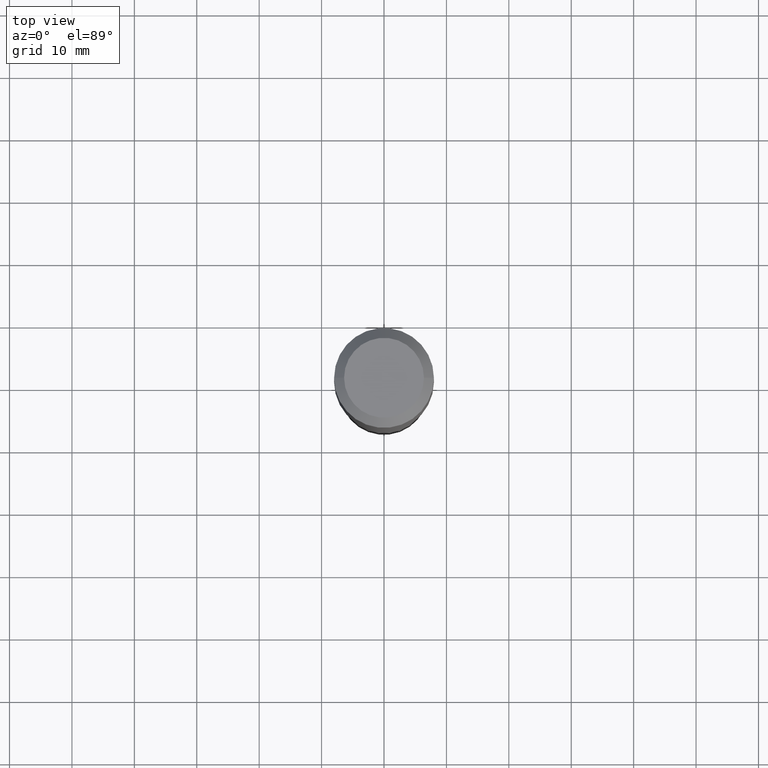
[diagram: clean part render]
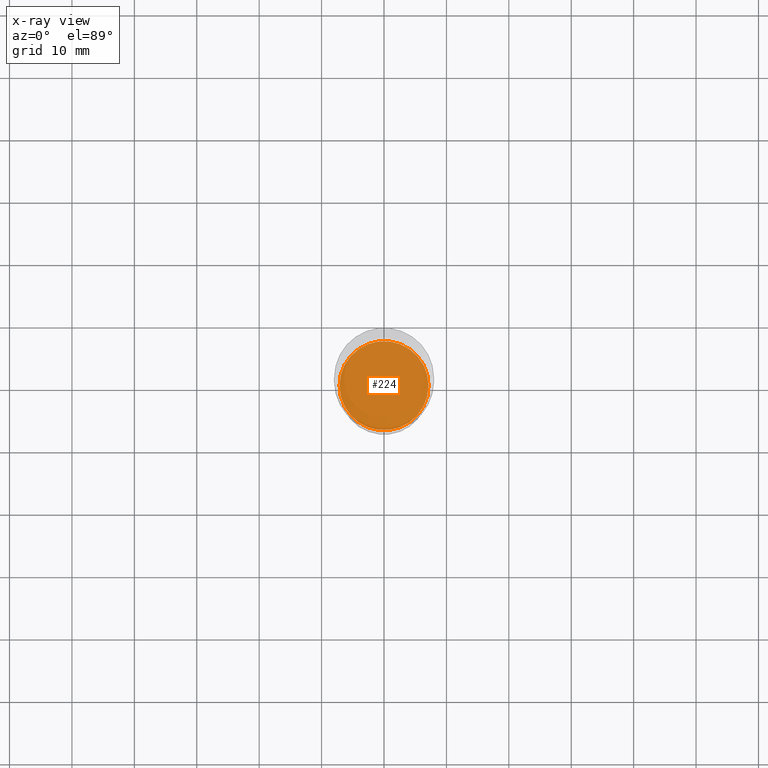
[diagram: x-ray — body ghosted, one internal face saturated and labeled with its STEP entity id]
A machine part, top view, then the same camera in x-ray: the body is ghosted and one INTERNAL B-rep face — a face not visible from any outside direction — is saturated and labeled: STEP entity #224.
In plain terms, the highlighted planar face has unit normal (-0, 0, 1).
Its self-contained STEP definition (entity closure, byte-faithful):
#9 = EDGE_CURVE ( 'NONE', #353, #430, #295, .T. ) ;
#15 = DIRECTION ( 'NONE',  ( 1.000000000000000000, -6.982962677686264344E-15, 0.000000000000000000 ) ) ;
#41 = AXIS2_PLACEMENT_3D ( 'NONE', #294, #204, #15 ) ;
#71 = CARTESIAN_POINT ( 'NONE',  ( 7.078654006383494547E-29, -1.010644188341536605E-14, -2.894599999999999174 ) ) ;
#78 = DIRECTION ( 'NONE',  ( -2.445468806185136597E-29, 3.491481338843145583E-15, 1.000000000000000000 ) ) ;
#84 = CIRCLE ( 'NONE', #41, 0.2807499999999999996 ) ;
#101 = CARTESIAN_POINT ( 'NONE',  ( 7.078654006383494547E-29, -1.010644188341536605E-14, -2.894599999999999174 ) ) ;
#103 = FACE_OUTER_BOUND ( 'NONE', #359, .T. ) ;
#107 = ORIENTED_EDGE ( 'NONE', *, *, #9, .F. ) ;
#135 = EDGE_CURVE ( 'NONE', #430, #353, #84, .T. ) ;
#150 = ORIENTED_EDGE ( 'NONE', *, *, #135, .F. ) ;
#204 = DIRECTION ( 'NONE',  ( -2.445468806185136597E-29, 3.491481338843145583E-15, 1.000000000000000000 ) ) ;
#220 = DIRECTION ( 'NONE',  ( -2.438088387897960049E-29, 3.491481338843145188E-15, 1.000000000000000000 ) ) ;
#224 = ADVANCED_FACE ( 'NONE', ( #103 ), #260, .F. ) ;
#254 = CARTESIAN_POINT ( 'NONE',  ( 0.2807499999999999996, -1.206690865517578476E-14, -2.894599999999999174 ) ) ;
#260 = PLANE ( 'NONE',  #494 ) ;
#294 = CARTESIAN_POINT ( 'NONE',  ( 7.078654006383494547E-29, -1.010644188341536605E-14, -2.894599999999999174 ) ) ;
#295 = CIRCLE ( 'NONE', #362, 0.2807499999999999996 ) ;
#341 = DIRECTION ( 'NONE',  ( 1.000000000000000000, -6.982962677686265922E-15, 4.876176775795935793E-29 ) ) ;
#353 = VERTEX_POINT ( 'NONE', #452 ) ;
#359 = EDGE_LOOP ( 'NONE', ( #150, #107 ) ) ;
#362 = AXIS2_PLACEMENT_3D ( 'NONE', #71, #78, #475 ) ;
#430 = VERTEX_POINT ( 'NONE', #254 ) ;
#452 = CARTESIAN_POINT ( 'NONE',  ( -0.2807499999999999996, -8.108943925594772393E-15, -2.894599999999999174 ) ) ;
#475 = DIRECTION ( 'NONE',  ( 1.000000000000000000, -6.982962677686264344E-15, 0.000000000000000000 ) ) ;
#494 = AXIS2_PLACEMENT_3D ( 'NONE', #101, #220, #341 ) ;